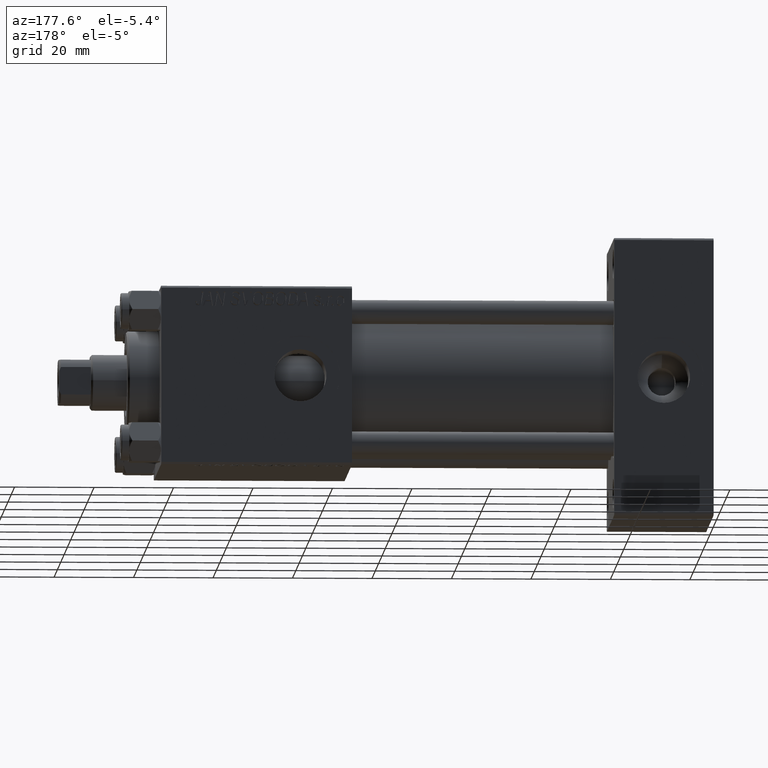
[diagram: clean part render]
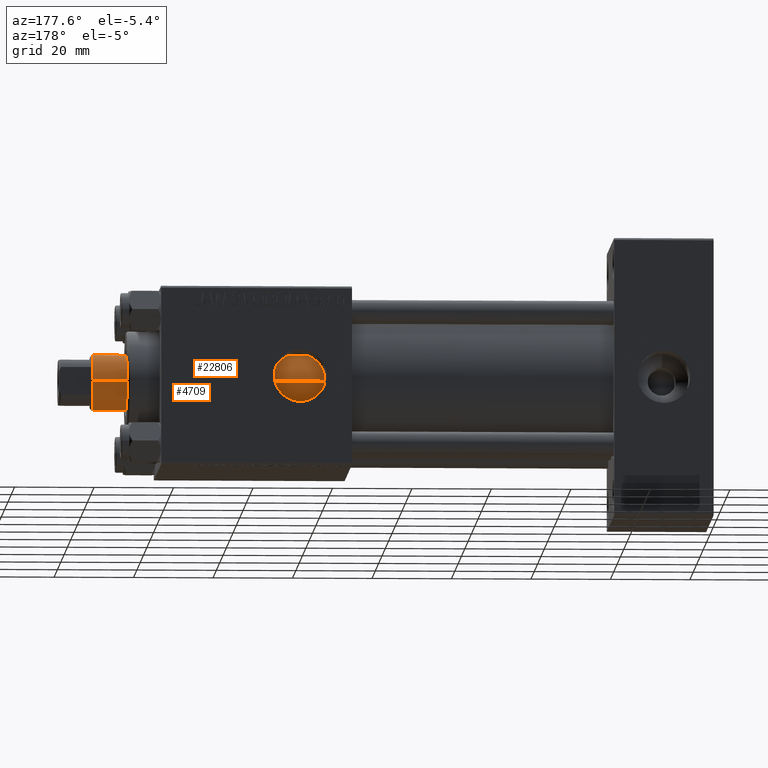
[diagram: same view with one multi-face feature highlighted, each face labeled with its STEP entity id]
A machine part, auxiliary view. The highlighted faces form ONE feature: a constant-radius fillet chain: 2 tangent blend faces with common blend radius 7 mm. The faces share edges in the B-rep.
Their STEP definitions:
[1] entity #22806 (Cylinder):
#2077 = DIRECTION ( 'NONE',  ( 1.000000000000000000, 0.000000000000000000, 0.000000000000000000 ) ) ;
#2407 = AXIS2_PLACEMENT_3D ( 'NONE', #44268, #36694, #2077 ) ;
#2884 = DIRECTION ( 'NONE',  ( -0.000000000000000000, -0.000000000000000000, -1.000000000000000000 ) ) ;
#4045 = CIRCLE ( 'NONE', #2407, 7.000000000000000000 ) ;
#4561 = CIRCLE ( 'NONE', #28747, 7.000000000000000000 ) ;
#5046 = DIRECTION ( 'NONE',  ( -0.000000000000000000, -0.000000000000000000, -1.000000000000000000 ) ) ;
#8521 = VERTEX_POINT ( 'NONE', #13044 ) ;
#9464 = CARTESIAN_POINT ( 'NONE',  ( -7.000000000000000000, 0.000000000000000000, 30.00000000000000000 ) ) ;
#10948 = FACE_OUTER_BOUND ( 'NONE', #36735, .T. ) ;
#11702 = CARTESIAN_POINT ( 'NONE',  ( 0.000000000000000000, 0.000000000000000000, 131.0000000000000000 ) ) ;
#11793 = DIRECTION ( 'NONE',  ( 0.000000000000000000, 0.000000000000000000, -1.000000000000000000 ) ) ;
#13044 = CARTESIAN_POINT ( 'NONE',  ( 7.000000000000000000, 8.572527594031473190E-16, 130.4999999999999716 ) ) ;
#13436 = EDGE_CURVE ( 'NONE', #8521, #28262, #4561, .T. ) ;
#13509 = ORIENTED_EDGE ( 'NONE', *, *, #29938, .F. ) ;
#18806 = CARTESIAN_POINT ( 'NONE',  ( -7.000000000000000000, 0.000000000000000000, 131.0000000000000000 ) ) ;
#20367 = DIRECTION ( 'NONE',  ( 1.000000000000000000, 0.000000000000000000, 0.000000000000000000 ) ) ;
#20697 = CARTESIAN_POINT ( 'NONE',  ( 7.000000000000000000, 8.572527594031473190E-16, 131.0000000000000000 ) ) ;
#22806 = ADVANCED_FACE ( 'NONE', ( #10948 ), #38473, .T. ) ;
#23267 = VECTOR ( 'NONE', #5046, 1000.000000000000000 ) ;
#23517 = CARTESIAN_POINT ( 'NONE',  ( 7.000000000000000000, 8.572527594031473190E-16, 30.00000000000000000 ) ) ;
#25263 = CARTESIAN_POINT ( 'NONE',  ( -7.000000000000000000, 0.000000000000000000, 130.4999999999999716 ) ) ;
#27081 = AXIS2_PLACEMENT_3D ( 'NONE', #11702, #34194, #41510 ) ;
#28262 = VERTEX_POINT ( 'NONE', #25263 ) ;
#28747 = AXIS2_PLACEMENT_3D ( 'NONE', #47405, #11793, #20367 ) ;
#29938 = EDGE_CURVE ( 'NONE', #8521, #37237, #31577, .T. ) ;
#31577 = LINE ( 'NONE', #20697, #23267 ) ;
#34194 = DIRECTION ( 'NONE',  ( -0.000000000000000000, -0.000000000000000000, -1.000000000000000000 ) ) ;
#34268 = ORIENTED_EDGE ( 'NONE', *, *, #13436, .T. ) ;
#36335 = LINE ( 'NONE', #18806, #41446 ) ;
#36694 = DIRECTION ( 'NONE',  ( 0.000000000000000000, 0.000000000000000000, 1.000000000000000000 ) ) ;
#36735 = EDGE_LOOP ( 'NONE', ( #13509, #34268, #37211, #42592 ) ) ;
#37036 = EDGE_CURVE ( 'NONE', #41286, #37237, #4045, .T. ) ;
#37211 = ORIENTED_EDGE ( 'NONE', *, *, #43310, .T. ) ;
#37237 = VERTEX_POINT ( 'NONE', #23517 ) ;
#38473 = CYLINDRICAL_SURFACE ( 'NONE', #27081, 7.000000000000000000 ) ;
#41286 = VERTEX_POINT ( 'NONE', #9464 ) ;
#41446 = VECTOR ( 'NONE', #2884, 1000.000000000000000 ) ;
#41510 = DIRECTION ( 'NONE',  ( -1.000000000000000000, 0.000000000000000000, 0.000000000000000000 ) ) ;
#42592 = ORIENTED_EDGE ( 'NONE', *, *, #37036, .T. ) ;
#43310 = EDGE_CURVE ( 'NONE', #28262, #41286, #36335, .T. ) ;
#44268 = CARTESIAN_POINT ( 'NONE',  ( 0.000000000000000000, 0.000000000000000000, 30.00000000000000000 ) ) ;
#47405 = CARTESIAN_POINT ( 'NONE',  ( 0.000000000000000000, 0.000000000000000000, 130.4999999999999716 ) ) ;
[2] entity #4709 (Cylinder):
#1276 = CARTESIAN_POINT ( 'NONE',  ( 0.000000000000000000, 0.000000000000000000, 30.00000000000000000 ) ) ;
#2884 = DIRECTION ( 'NONE',  ( -0.000000000000000000, -0.000000000000000000, -1.000000000000000000 ) ) ;
#4709 = ADVANCED_FACE ( 'NONE', ( #20378 ), #16830, .T. ) ;
#5046 = DIRECTION ( 'NONE',  ( -0.000000000000000000, -0.000000000000000000, -1.000000000000000000 ) ) ;
#6891 = CIRCLE ( 'NONE', #21403, 7.000000000000000000 ) ;
#8521 = VERTEX_POINT ( 'NONE', #13044 ) ;
#8554 = ORIENTED_EDGE ( 'NONE', *, *, #29938, .T. ) ;
#9464 = CARTESIAN_POINT ( 'NONE',  ( -7.000000000000000000, 0.000000000000000000, 30.00000000000000000 ) ) ;
#12788 = DIRECTION ( 'NONE',  ( -1.000000000000000000, 0.000000000000000000, 0.000000000000000000 ) ) ;
#13044 = CARTESIAN_POINT ( 'NONE',  ( 7.000000000000000000, 8.572527594031473190E-16, 130.4999999999999716 ) ) ;
#14122 = ORIENTED_EDGE ( 'NONE', *, *, #21413, .T. ) ;
#16066 = EDGE_CURVE ( 'NONE', #37237, #41286, #18114, .T. ) ;
#16830 = CYLINDRICAL_SURFACE ( 'NONE', #29154, 7.000000000000000000 ) ;
#18114 = CIRCLE ( 'NONE', #27787, 7.000000000000000000 ) ;
#18806 = CARTESIAN_POINT ( 'NONE',  ( -7.000000000000000000, 0.000000000000000000, 131.0000000000000000 ) ) ;
#20378 = FACE_OUTER_BOUND ( 'NONE', #24190, .T. ) ;
#20697 = CARTESIAN_POINT ( 'NONE',  ( 7.000000000000000000, 8.572527594031473190E-16, 131.0000000000000000 ) ) ;
#21403 = AXIS2_PLACEMENT_3D ( 'NONE', #43793, #39502, #35725 ) ;
#21413 = EDGE_CURVE ( 'NONE', #28262, #8521, #6891, .T. ) ;
#23267 = VECTOR ( 'NONE', #5046, 1000.000000000000000 ) ;
#23517 = CARTESIAN_POINT ( 'NONE',  ( 7.000000000000000000, 8.572527594031473190E-16, 30.00000000000000000 ) ) ;
#24190 = EDGE_LOOP ( 'NONE', ( #14122, #8554, #43413, #27392 ) ) ;
#25145 = CARTESIAN_POINT ( 'NONE',  ( 0.000000000000000000, 0.000000000000000000, 131.0000000000000000 ) ) ;
#25263 = CARTESIAN_POINT ( 'NONE',  ( -7.000000000000000000, 0.000000000000000000, 130.4999999999999716 ) ) ;
#27392 = ORIENTED_EDGE ( 'NONE', *, *, #43310, .F. ) ;
#27787 = AXIS2_PLACEMENT_3D ( 'NONE', #1276, #35647, #28044 ) ;
#28044 = DIRECTION ( 'NONE',  ( 1.000000000000000000, 0.000000000000000000, 0.000000000000000000 ) ) ;
#28262 = VERTEX_POINT ( 'NONE', #25263 ) ;
#29154 = AXIS2_PLACEMENT_3D ( 'NONE', #25145, #47909, #12788 ) ;
#29938 = EDGE_CURVE ( 'NONE', #8521, #37237, #31577, .T. ) ;
#31577 = LINE ( 'NONE', #20697, #23267 ) ;
#35647 = DIRECTION ( 'NONE',  ( 0.000000000000000000, 0.000000000000000000, 1.000000000000000000 ) ) ;
#35725 = DIRECTION ( 'NONE',  ( 1.000000000000000000, 0.000000000000000000, 0.000000000000000000 ) ) ;
#36335 = LINE ( 'NONE', #18806, #41446 ) ;
#37237 = VERTEX_POINT ( 'NONE', #23517 ) ;
#39502 = DIRECTION ( 'NONE',  ( 0.000000000000000000, 0.000000000000000000, -1.000000000000000000 ) ) ;
#41286 = VERTEX_POINT ( 'NONE', #9464 ) ;
#41446 = VECTOR ( 'NONE', #2884, 1000.000000000000000 ) ;
#43310 = EDGE_CURVE ( 'NONE', #28262, #41286, #36335, .T. ) ;
#43413 = ORIENTED_EDGE ( 'NONE', *, *, #16066, .T. ) ;
#43793 = CARTESIAN_POINT ( 'NONE',  ( 0.000000000000000000, 0.000000000000000000, 130.4999999999999716 ) ) ;
#47909 = DIRECTION ( 'NONE',  ( -0.000000000000000000, -0.000000000000000000, -1.000000000000000000 ) ) ;